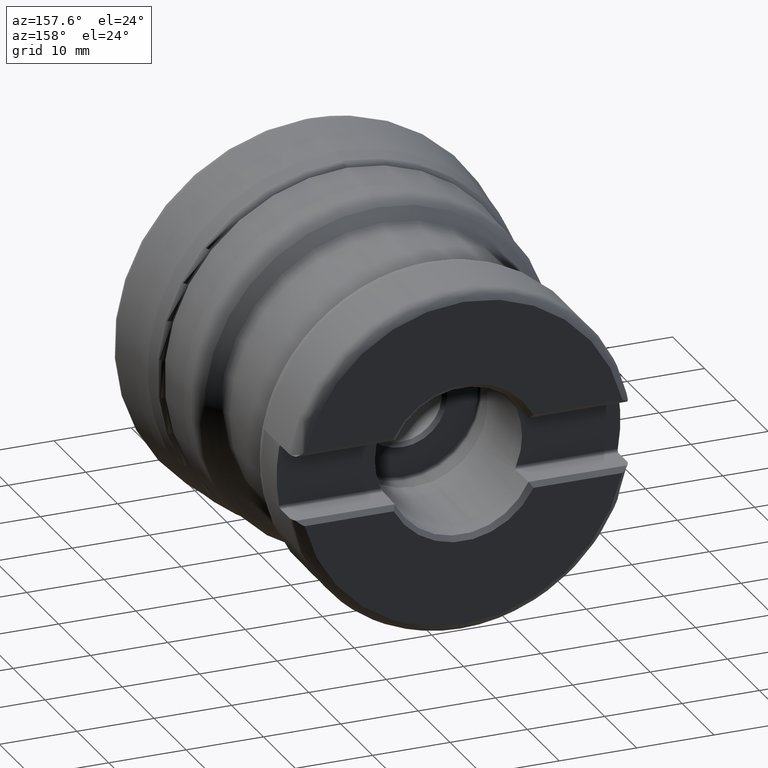
[diagram: clean part render]
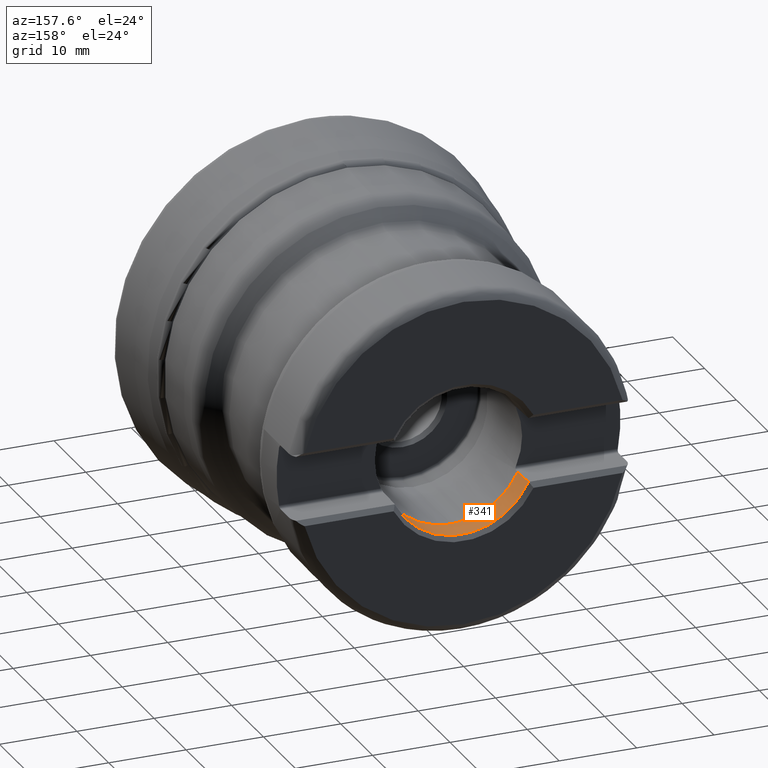
[diagram: same view with one face highlighted and labeled with its STEP entity id]
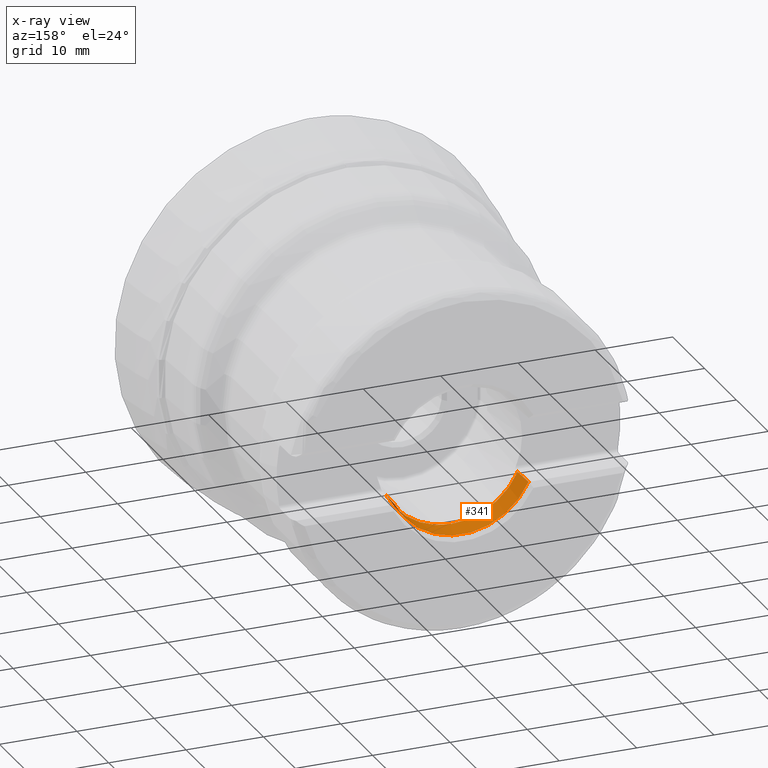
[diagram: x-ray of the same camera — body ghosted, the highlighted face saturated]
A machine part, auxiliary view. The second image highlights one B-rep face of the part: STEP entity #341.
The next image is the same camera in x-ray: the body ghosted, the highlighted face saturated — about 0% of this face is hidden behind the body in this view.
In plain terms, the highlighted conical surface has half-angle 1.5 deg.
Its self-contained STEP definition (entity closure, byte-faithful):
#176=CONICAL_SURFACE('',#1171,9.525,1.50000000000003);
#205=FACE_OUTER_BOUND('',#530,.T.);
#236=B_SPLINE_CURVE_WITH_KNOTS('',3,(#1840,#1841,#1842,#1843,#1844,#1845,
#1846),.UNSPECIFIED.,.F.,.F.,(4,3,4),(0.,0.385079153036652,1.),
 .UNSPECIFIED.);
#239=B_SPLINE_CURVE_WITH_KNOTS('',3,(#1864,#1865,#1866,#1867,#1868,#1869,
#1870),.UNSPECIFIED.,.F.,.F.,(4,3,4),(0.,0.614920846963347,1.),
 .UNSPECIFIED.);
#341=ADVANCED_FACE('',(#205),#176,.F.);
#530=EDGE_LOOP('',(#729,#730,#731,#732));
#729=ORIENTED_EDGE('',*,*,#1009,.T.);
#730=ORIENTED_EDGE('',*,*,#1015,.T.);
#731=ORIENTED_EDGE('',*,*,#1003,.T.);
#732=ORIENTED_EDGE('',*,*,#1012,.F.);
#900=VERTEX_POINT('',#1847);
#901=VERTEX_POINT('',#1848);
#904=VERTEX_POINT('',#1863);
#905=VERTEX_POINT('',#1871);
#1003=EDGE_CURVE('',#900,#901,#236,.T.);
#1009=EDGE_CURVE('',#905,#904,#239,.T.);
#1012=EDGE_CURVE('',#905,#901,#1083,.T.);
#1015=EDGE_CURVE('',#904,#900,#1086,.T.);
#1083=CIRCLE('',#1165,9.525);
#1086=CIRCLE('',#1170,9.60837246437858);
#1165=AXIS2_PLACEMENT_3D('',#1876,#1336,#1337);
#1170=AXIS2_PLACEMENT_3D('',#1881,#1346,#1347);
#1171=AXIS2_PLACEMENT_3D('',#1882,#1348,#1349);
#1336=DIRECTION('',(0.,1.,0.));
#1337=DIRECTION('',(0.,0.,-1.));
#1346=DIRECTION('',(0.,1.,0.));
#1347=DIRECTION('',(0.,0.,-1.));
#1348=DIRECTION('',(0.,1.,0.));
#1349=DIRECTION('',(0.,3.88614664590136E-16,1.));
#1840=CARTESIAN_POINT('',(-8.65391220282645,49.3838659624142,-4.175));
#1841=CARTESIAN_POINT('',(-8.64203021474974,48.9751854734507,-4.175));
#1842=CARTESIAN_POINT('',(-8.63014361035592,48.5665051186754,-4.17500000000001));
#1843=CARTESIAN_POINT('',(-8.61825233211778,48.15782489992,-4.17500000000001));
#1844=CARTESIAN_POINT('',(-8.59926352210968,47.5052162507395,-4.17500000000001));
#1845=CARTESIAN_POINT('',(-8.58026279418306,46.8526079482186,-4.17500000000001));
#1846=CARTESIAN_POINT('',(-8.5612499087458,46.2,-4.17500000000001));
#1847=CARTESIAN_POINT('',(-8.65391220282645,49.3838659624142,-4.175));
#1848=CARTESIAN_POINT('',(-8.5612499087458,46.2,-4.17500000000001));
#1863=CARTESIAN_POINT('',(8.65391220282645,49.3838659624142,-4.175));
#1864=CARTESIAN_POINT('',(8.5612499087458,46.2,-4.17500000000001));
#1865=CARTESIAN_POINT('',(8.58026279418306,46.8526079482186,-4.17500000000001));
#1866=CARTESIAN_POINT('',(8.59926352210968,47.5052162507395,-4.17500000000001));
#1867=CARTESIAN_POINT('',(8.61825233211778,48.15782489992,-4.17500000000001));
#1868=CARTESIAN_POINT('',(8.63014361035592,48.5665051186754,-4.17500000000001));
#1869=CARTESIAN_POINT('',(8.64203021474974,48.9751854734507,-4.175));
#1870=CARTESIAN_POINT('',(8.65391220282645,49.3838659624142,-4.175));
#1871=CARTESIAN_POINT('',(8.5612499087458,46.2,-4.17500000000001));
#1876=CARTESIAN_POINT('',(0.,46.2,0.));
#1881=CARTESIAN_POINT('',(0.,49.3838659624142,0.));
#1882=CARTESIAN_POINT('',(0.,46.2,0.));